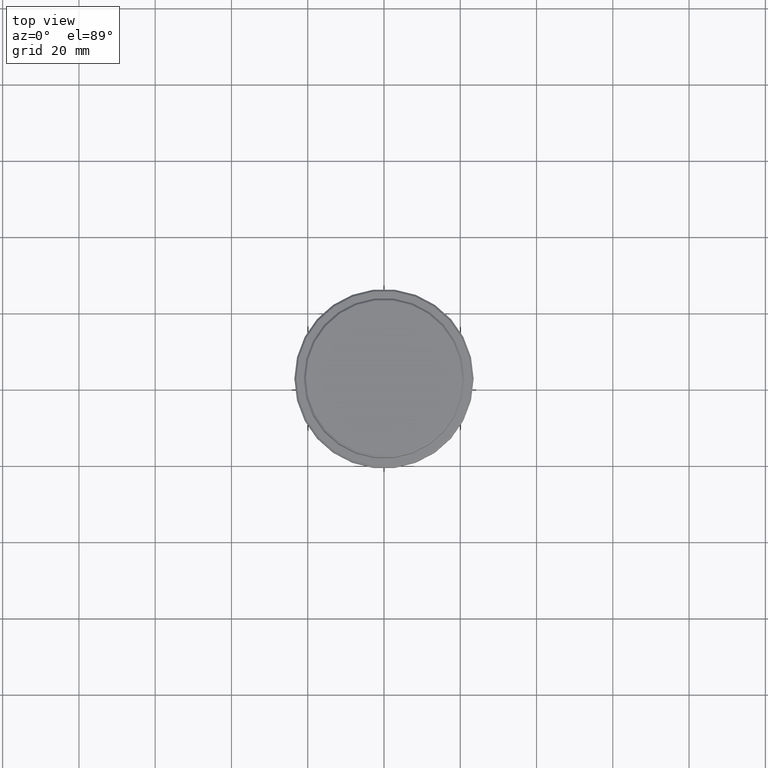
[diagram: clean part render]
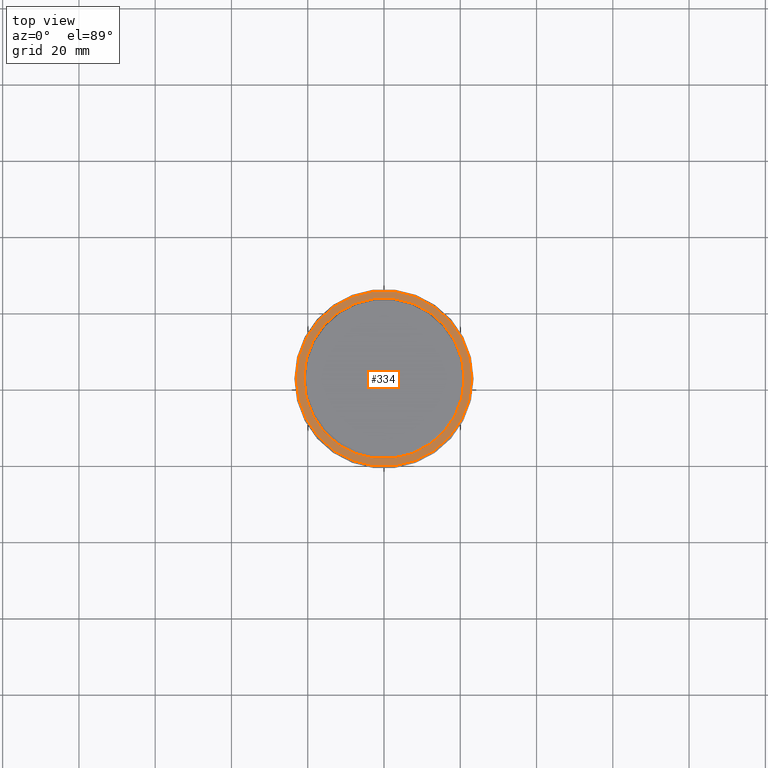
[diagram: same view with one face highlighted and labeled with its STEP entity id]
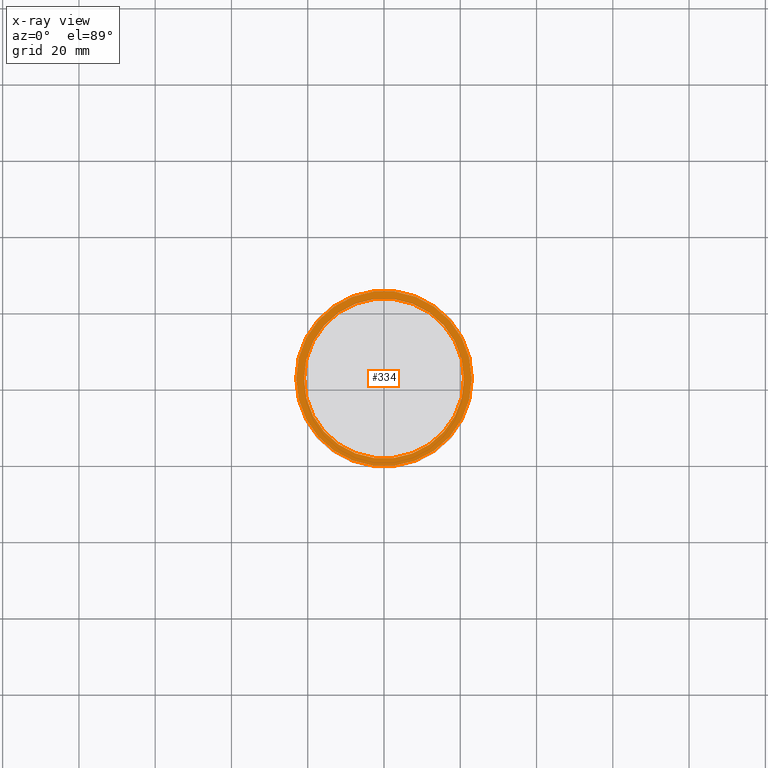
[diagram: x-ray of the same camera — body ghosted, the highlighted face saturated]
A machine part, top view. The second image highlights one B-rep face of the part: STEP entity #334.
The next image is the same camera in x-ray: the body ghosted, the highlighted face saturated — about 0% of this face is hidden behind the body in this view.
In plain terms, the highlighted planar face has unit normal (0, -0, 1).
Its self-contained STEP definition (entity closure, byte-faithful):
#1 = DIRECTION ( 'NONE',  ( 1.000000000000000000, 0.000000000000000000, 0.000000000000000000 ) ) ;
#8 = AXIS2_PLACEMENT_3D ( 'NONE', #1069, #1405, #1 ) ;
#75 = DIRECTION ( 'NONE',  ( 1.000000000000000000, 0.000000000000000000, 0.000000000000000000 ) ) ;
#90 = VERTEX_POINT ( 'NONE', #1377 ) ;
#99 = CARTESIAN_POINT ( 'NONE',  ( -23.00000000000005329, 0.000000000000000000, -9.000000000000000000 ) ) ;
#135 = PLANE ( 'NONE',  #678 ) ;
#145 = CARTESIAN_POINT ( 'NONE',  ( 23.00000000000005329, 2.847303808017599689E-15, -9.000000000000000000 ) ) ;
#153 = DIRECTION ( 'NONE',  ( 0.000000000000000000, 0.000000000000000000, -1.000000000000000000 ) ) ;
#184 = CIRCLE ( 'NONE', #1153, 23.00000000000005329 ) ;
#198 = ORIENTED_EDGE ( 'NONE', *, *, #1367, .T. ) ;
#240 = FACE_OUTER_BOUND ( 'NONE', #584, .T. ) ;
#254 = DIRECTION ( 'NONE',  ( 1.000000000000000000, 0.000000000000000000, 0.000000000000000000 ) ) ;
#270 = AXIS2_PLACEMENT_3D ( 'NONE', #679, #153, #254 ) ;
#272 = CIRCLE ( 'NONE', #1282, 23.00000000000005329 ) ;
#318 = EDGE_CURVE ( 'NONE', #1012, #90, #1306, .T. ) ;
#330 = VERTEX_POINT ( 'NONE', #145 ) ;
#334 = ADVANCED_FACE ( 'NONE', ( #240, #582 ), #135, .T. ) ;
#349 = DIRECTION ( 'NONE',  ( 1.000000000000000000, 0.000000000000000000, 0.000000000000000000 ) ) ;
#364 = DIRECTION ( 'NONE',  ( 0.000000000000000000, -0.000000000000000000, 1.000000000000000000 ) ) ;
#455 = ORIENTED_EDGE ( 'NONE', *, *, #630, .T. ) ;
#557 = EDGE_CURVE ( 'NONE', #330, #1155, #272, .T. ) ;
#582 = FACE_BOUND ( 'NONE', #1250, .T. ) ;
#584 = EDGE_LOOP ( 'NONE', ( #198, #1160 ) ) ;
#630 = EDGE_CURVE ( 'NONE', #90, #1012, #1378, .T. ) ;
#678 = AXIS2_PLACEMENT_3D ( 'NONE', #1237, #364, #349 ) ;
#679 = CARTESIAN_POINT ( 'NONE',  ( 0.000000000000000000, 0.000000000000000000, -9.000000000000000000 ) ) ;
#812 = DIRECTION ( 'NONE',  ( 1.000000000000000000, 0.000000000000000000, 0.000000000000000000 ) ) ;
#1004 = ORIENTED_EDGE ( 'NONE', *, *, #318, .T. ) ;
#1012 = VERTEX_POINT ( 'NONE', #1386 ) ;
#1040 = CARTESIAN_POINT ( 'NONE',  ( 0.000000000000000000, 0.000000000000000000, -9.000000000000000000 ) ) ;
#1069 = CARTESIAN_POINT ( 'NONE',  ( 0.000000000000000000, 0.000000000000000000, -9.000000000000000000 ) ) ;
#1139 = DIRECTION ( 'NONE',  ( -0.000000000000000000, -0.000000000000000000, 1.000000000000000000 ) ) ;
#1146 = DIRECTION ( 'NONE',  ( -0.000000000000000000, -0.000000000000000000, 1.000000000000000000 ) ) ;
#1153 = AXIS2_PLACEMENT_3D ( 'NONE', #1266, #1146, #812 ) ;
#1155 = VERTEX_POINT ( 'NONE', #99 ) ;
#1160 = ORIENTED_EDGE ( 'NONE', *, *, #557, .T. ) ;
#1237 = CARTESIAN_POINT ( 'NONE',  ( 0.000000000000000000, 20.49999999999999645, -9.000000000000000000 ) ) ;
#1250 = EDGE_LOOP ( 'NONE', ( #455, #1004 ) ) ;
#1266 = CARTESIAN_POINT ( 'NONE',  ( 0.000000000000000000, 0.000000000000000000, -9.000000000000000000 ) ) ;
#1282 = AXIS2_PLACEMENT_3D ( 'NONE', #1040, #1139, #75 ) ;
#1306 = CIRCLE ( 'NONE', #270, 20.99999999999999289 ) ;
#1367 = EDGE_CURVE ( 'NONE', #1155, #330, #184, .T. ) ;
#1377 = CARTESIAN_POINT ( 'NONE',  ( 20.99999999999999289, 0.000000000000000000, -9.000000000000000000 ) ) ;
#1378 = CIRCLE ( 'NONE', #8, 20.99999999999999289 ) ;
#1386 = CARTESIAN_POINT ( 'NONE',  ( -20.99999999999999289, 2.571758278209440872E-15, -9.000000000000000000 ) ) ;
#1405 = DIRECTION ( 'NONE',  ( 0.000000000000000000, 0.000000000000000000, -1.000000000000000000 ) ) ;